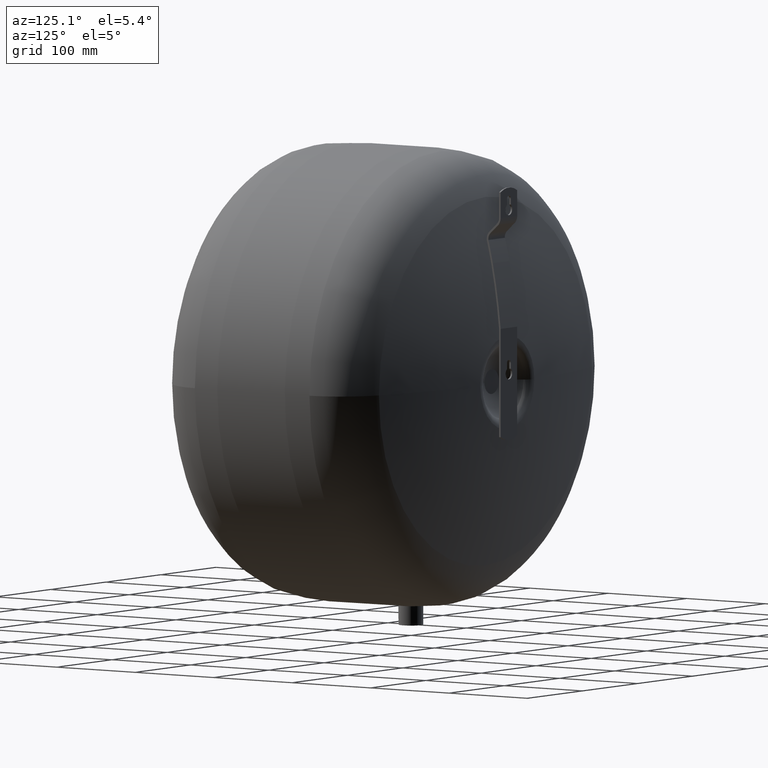
[diagram: clean part render]
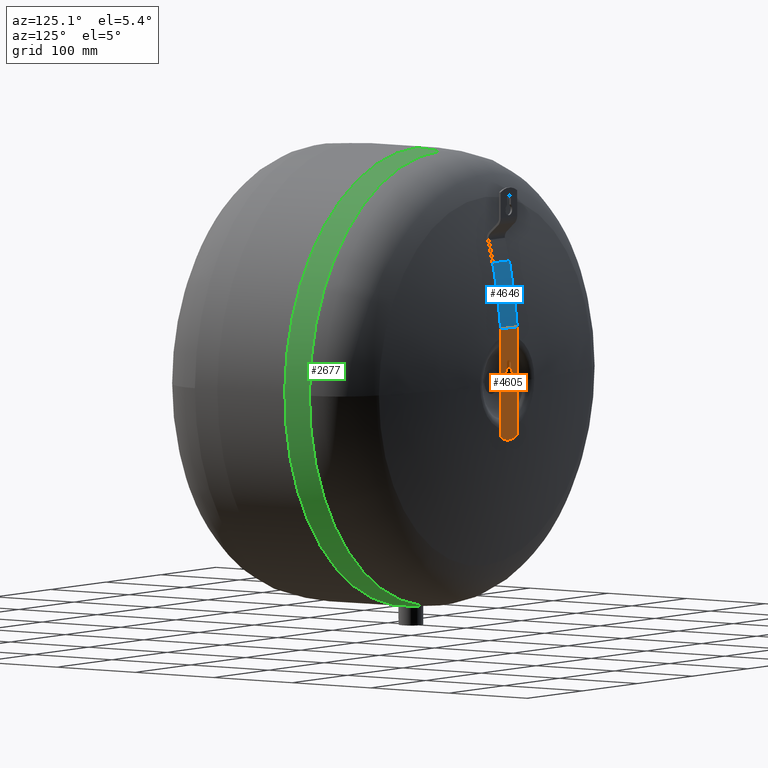
[diagram: same view with three faces highlighted in distinct colors, each labeled with its STEP entity id]
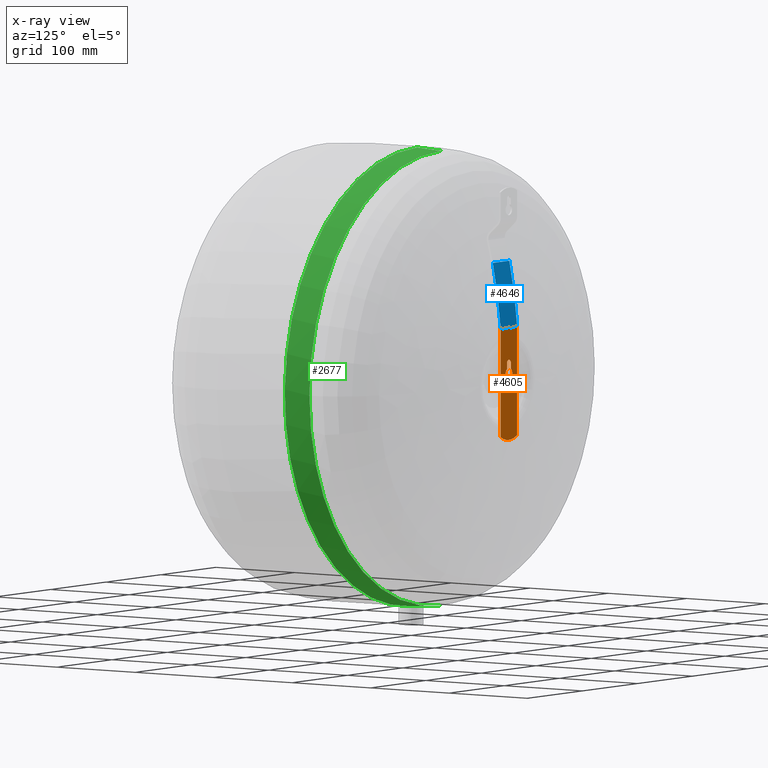
[diagram: x-ray of the same camera — body ghosted, the three highlighted faces saturated]
A machine part, auxiliary view with three faces highlighted in distinct colors.
The next image is the same camera in x-ray (body ghosted, the three faces saturated) — at least one of them is partly hidden behind the body in this view.
Their STEP definitions:

[orange] entity #4605 — the highlighted planar face has unit normal (0, 1, 0).
#4077=CARTESIAN_POINT('',(-3.500000000000005,125.00000000000074,274.3733971724044));
#4078=VERTEX_POINT('',#4077);
#4085=CARTESIAN_POINT('',(-3.499999999999998,125.00000000000074,280.4999999999996));
#4086=VERTEX_POINT('',#4085);
#4087=CARTESIAN_POINT('',(-3.499999999999996,125.00000000000023,280.4999999999996));
#4088=DIRECTION('',(0.0,0.0,-1.0));
#4089=VECTOR('',#4088,6.126602827595207);
#4090=LINE('',#4087,#4089);
#4091=EDGE_CURVE('',#4086,#4078,#4090,.T.);
#4117=CARTESIAN_POINT('',(3.500000000000005,125.00000000000074,280.4999999999996));
#4118=VERTEX_POINT('',#4117);
#4119=CARTESIAN_POINT('',(5.329071E-015,125.00000000000023,280.4999999999996));
#4120=DIRECTION('',(0.0,-1.0,0.0));
#4121=DIRECTION('',(-1.0,0.0,0.0));
#4122=AXIS2_PLACEMENT_3D('',#4119,#4120,#4121);
#4123=CIRCLE('',#4122,3.5);
#4124=EDGE_CURVE('',#4118,#4086,#4123,.T.);
#4149=CARTESIAN_POINT('',(3.500000000000016,125.00000000000074,274.37339717240405));
#4150=VERTEX_POINT('',#4149);
#4151=CARTESIAN_POINT('',(3.500000000000013,125.00000000000023,274.37339717240405));
#4152=DIRECTION('',(0.0,0.0,1.0));
#4153=VECTOR('',#4152,6.126602827595548);
#4154=LINE('',#4151,#4153);
#4155=EDGE_CURVE('',#4150,#4118,#4154,.T.);
#4179=CARTESIAN_POINT('',(3.552714E-015,125.00000000000023,269.4999999999996));
#4180=DIRECTION('',(-6.250595E-017,-1.0,-8.703323E-017));
#4181=DIRECTION('',(0.583333333333335,-1.071531E-016,0.812232862067412));
#4182=AXIS2_PLACEMENT_3D('',#4179,#4180,#4181);
#4183=CIRCLE('',#4182,6.000000000000003);
#4184=EDGE_CURVE('',#4078,#4150,#4183,.T.);
#4206=CARTESIAN_POINT('',(0.0,125.00000000000074,200.0));
#4207=VERTEX_POINT('',#4206);
#4214=CARTESIAN_POINT('',(15.0,125.00000000000074,204.0));
#4215=VERTEX_POINT('',#4214);
#4216=CARTESIAN_POINT('',(-0.033617296123742,125.00000000000023,230.25106486046417));
#4217=DIRECTION('',(4.536625E-017,1.0,-7.921662E-017));
#4218=DIRECTION('',(-0.496961283270637,9.128729E-017,0.867772713865792));
#4219=AXIS2_PLACEMENT_3D('',#4216,#4217,#4218);
#4220=CIRCLE('',#4219,30.251083539513232);
#4221=EDGE_CURVE('',#4215,#4207,#4220,.T.);
#4246=CARTESIAN_POINT('',(-14.999999999999998,125.00000000000075,204.0));
#4247=VERTEX_POINT('',#4246);
#4254=CARTESIAN_POINT('',(-3.730349E-014,125.00000000000023,230.125));
#4255=DIRECTION('',(0.0,1.0,0.0));
#4256=DIRECTION('',(0.0,0.0,1.0));
#4257=AXIS2_PLACEMENT_3D('',#4254,#4255,#4256);
#4258=CIRCLE('',#4257,30.125);
#4259=EDGE_CURVE('',#4207,#4247,#4258,.T.);
#4313=CARTESIAN_POINT('',(15.000000000000007,125.00000000000023,317.55608499470873));
#4314=VERTEX_POINT('',#4313);
#4315=CARTESIAN_POINT('',(15.000000000000007,125.00000000000023,317.55608499470873));
#4316=DIRECTION('',(0.0,0.0,-1.0));
#4317=VECTOR('',#4316,113.55608499470873);
#4318=LINE('',#4315,#4317);
#4319=EDGE_CURVE('',#4314,#4215,#4318,.T.);
#4541=CARTESIAN_POINT('',(-14.999999999999995,125.00000000000023,317.55608499470873));
#4542=VERTEX_POINT('',#4541);
#4550=CARTESIAN_POINT('',(-15.000000000000002,125.00000000000023,204.0));
#4551=DIRECTION('',(0.0,0.0,1.0));
#4552=VECTOR('',#4551,113.55608499470873);
#4553=LINE('',#4550,#4552);
#4554=EDGE_CURVE('',#4247,#4542,#4553,.T.);
#4582=CARTESIAN_POINT('',(15.0,125.00000000000023,200.0));
#4583=DIRECTION('',(0.0,1.0,0.0));
#4584=DIRECTION('',(-1.0,0.0,0.0));
#4585=AXIS2_PLACEMENT_3D('',#4582,#4583,#4584);
#4586=PLANE('',#4585);
#4587=ORIENTED_EDGE('',*,*,#4221,.T.);
#4588=ORIENTED_EDGE('',*,*,#4259,.T.);
#4589=ORIENTED_EDGE('',*,*,#4554,.T.);
#4590=CARTESIAN_POINT('',(15.000000000000007,125.00000000000023,317.55608499470873));
#4591=DIRECTION('',(-1.0,0.0,0.0));
#4592=VECTOR('',#4591,30.0);
#4593=LINE('',#4590,#4592);
#4594=EDGE_CURVE('',#4314,#4542,#4593,.T.);
#4595=ORIENTED_EDGE('',*,*,#4594,.F.);
#4596=ORIENTED_EDGE('',*,*,#4319,.T.);
#4597=EDGE_LOOP('',(#4587,#4588,#4589,#4595,#4596));
#4598=FACE_OUTER_BOUND('',#4597,.T.);
#4599=ORIENTED_EDGE('',*,*,#4155,.T.);
#4600=ORIENTED_EDGE('',*,*,#4124,.T.);
#4601=ORIENTED_EDGE('',*,*,#4091,.T.);
#4602=ORIENTED_EDGE('',*,*,#4184,.T.);
#4603=EDGE_LOOP('',(#4599,#4600,#4601,#4602));
#4604=FACE_BOUND('',#4603,.T.);
#4605=ADVANCED_FACE('',(#4598,#4604),#4586,.T.);

[blue] entity #4646 — the highlighted cylindrical surface (partial cylindrical patch) has radius 640 mm, axis along (-1, 0, 0).
#4313=CARTESIAN_POINT('',(15.000000000000007,125.00000000000023,317.55608499470873));
#4314=VERTEX_POINT('',#4313);
#4321=CARTESIAN_POINT('',(15.000000000000009,114.96817742757121,386.02499999999253));
#4322=VERTEX_POINT('',#4321);
#4323=CARTESIAN_POINT('',(14.999999999999886,-512.32903053728137,259.1462670322536));
#4324=DIRECTION('',(-1.0,1.883693E-016,3.810006E-017));
#4325=DIRECTION('',(1.921838E-016,0.980151887445084,0.198248020262092));
#4326=AXIS2_PLACEMENT_3D('',#4323,#4324,#4325);
#4327=CIRCLE('',#4326,639.99999999999852);
#4328=EDGE_CURVE('',#4322,#4314,#4327,.T.);
#4532=CARTESIAN_POINT('',(-14.999999999999995,114.96817742757121,386.02499999999253));
#4533=VERTEX_POINT('',#4532);
#4541=CARTESIAN_POINT('',(-14.999999999999995,125.00000000000023,317.55608499470873));
#4542=VERTEX_POINT('',#4541);
#4543=CARTESIAN_POINT('',(-15.000000000000115,-512.32903053728137,259.1462670322536));
#4544=DIRECTION('',(1.0,-1.883693E-016,-3.810006E-017));
#4545=DIRECTION('',(1.921838E-016,0.980151887445084,0.198248020262092));
#4546=AXIS2_PLACEMENT_3D('',#4543,#4544,#4545);
#4547=CIRCLE('',#4546,639.99999999999852);
#4548=EDGE_CURVE('',#4542,#4533,#4547,.T.);
#4590=CARTESIAN_POINT('',(15.000000000000007,125.00000000000023,317.55608499470873));
#4591=DIRECTION('',(-1.0,0.0,0.0));
#4592=VECTOR('',#4591,30.0);
#4593=LINE('',#4590,#4592);
#4594=EDGE_CURVE('',#4314,#4542,#4593,.T.);
#4630=CARTESIAN_POINT('',(14.999999999999886,-512.32903053728137,259.1462670322536));
#4631=DIRECTION('',(-1.0,1.836910E-016,6.123032E-017));
#4632=DIRECTION('',(1.921838E-016,0.980151887445084,0.198248020262092));
#4633=AXIS2_PLACEMENT_3D('',#4630,#4631,#4632);
#4634=CYLINDRICAL_SURFACE('',#4633,639.99999999999852);
#4635=ORIENTED_EDGE('',*,*,#4548,.T.);
#4636=CARTESIAN_POINT('',(15.000000000000009,114.96817742757121,386.02499999999253));
#4637=DIRECTION('',(-1.0,0.0,0.0));
#4638=VECTOR('',#4637,30.000000000000004);
#4639=LINE('',#4636,#4638);
#4640=EDGE_CURVE('',#4322,#4533,#4639,.T.);
#4641=ORIENTED_EDGE('',*,*,#4640,.F.);
#4642=ORIENTED_EDGE('',*,*,#4328,.T.);
#4643=ORIENTED_EDGE('',*,*,#4594,.T.);
#4644=EDGE_LOOP('',(#4635,#4641,#4642,#4643));
#4645=FACE_OUTER_BOUND('',#4644,.T.);
#4646=ADVANCED_FACE('',(#4645),#4634,.T.);

[green] entity #2677 — the highlighted conical surface has half-angle 3.814 deg.
#2614=CARTESIAN_POINT('',(2.014477E-014,23.000000000000085,260.00000000000006));
#2615=DIRECTION('',(-1.836910E-016,-1.0,0.0));
#2616=DIRECTION('',(0.0,0.0,1.0));
#2617=AXIS2_PLACEMENT_3D('',#2614,#2615,#2616);
#2618=CONICAL_SURFACE('',#2617,239.0,3.814074834290341);
#2619=CARTESIAN_POINT('',(3.208469E-014,8.000000000000085,500.00000000000006));
#2620=VERTEX_POINT('',#2619);
#2621=CARTESIAN_POINT('',(3.747295E-014,38.000000000000085,498.00000000000006));
#2622=VERTEX_POINT('',#2621);
#2623=CARTESIAN_POINT('',(3.208469E-014,8.000000000000087,500.00000000000006));
#2624=DIRECTION('',(1.792111E-016,0.997785157856609,-0.066519010523774));
#2625=VECTOR('',#2624,30.066592756745816);
#2626=LINE('',#2623,#2625);
#2627=EDGE_CURVE('',#2620,#2622,#2626,.T.);
#2628=ORIENTED_EDGE('',*,*,#2627,.F.);
#2629=CARTESIAN_POINT('',(10.246950765959362,8.000000000000085,20.218849781722867));
#2630=VERTEX_POINT('',#2629);
#2631=CARTESIAN_POINT('',(1.738941E-014,8.000000000000085,260.00000000000006));
#2632=DIRECTION('',(0.0,-1.0,0.0));
#2633=DIRECTION('',(0.0,0.0,1.0));
#2634=AXIS2_PLACEMENT_3D('',#2631,#2632,#2633);
#2635=CIRCLE('',#2634,240.0);
#2636=EDGE_CURVE('',#2630,#2620,#2635,.T.);
#2637=ORIENTED_EDGE('',*,*,#2636,.F.);
#2638=CARTESIAN_POINT('',(4.036945E-015,12.999999999999973,20.333333333333382));
#2639=VERTEX_POINT('',#2638);
#2640=CARTESIAN_POINT('',(10.246950765959362,8.000000000000085,20.218849781722867));
#2641=CARTESIAN_POINT('',(9.909902838528572,8.431714189769068,20.233253388991443));
#2642=CARTESIAN_POINT('',(9.549835330289239,8.836316341382769,20.245580707638936));
#2643=CARTESIAN_POINT('',(8.021743275096508,10.358667627861394,20.28866452677525));
#2644=CARTESIAN_POINT('',(6.562147677485435,11.354690938704081,20.308133104105167));
#2645=CARTESIAN_POINT('',(3.365431185533117,12.67535645863876,20.329992390162516));
#2646=CARTESIAN_POINT('',(1.628317409958309,12.999999999999972,20.3333333333334));
#2647=CARTESIAN_POINT('',(4.107825E-015,12.999999999999972,20.3333333333334));
#2648=B_SPLINE_CURVE_WITH_KNOTS('',3,(#2640,#2641,#2642,#2643,#2644,#2645,#2646,#2647),.UNSPECIFIED.,.F.,.U.,(4,2,2,4),(0.819416624277037,0.978148369643915,1.466643592631407,1.955138815618898),.UNSPECIFIED.);
#2649=EDGE_CURVE('',#2630,#2639,#2648,.T.);
#2650=ORIENTED_EDGE('',*,*,#2649,.T.);
#2651=CARTESIAN_POINT('',(3.747295E-014,38.000000000000092,22.000000000000053));
#2652=VERTEX_POINT('',#2651);
#2653=CARTESIAN_POINT('',(3.298273E-014,12.999999999999973,20.333333333333385));
#2654=DIRECTION('',(1.792111E-016,0.997785157856609,0.066519010523774));
#2655=VECTOR('',#2654,25.055493963954969);
#2656=LINE('',#2653,#2655);
#2657=EDGE_CURVE('',#2639,#2652,#2656,.T.);
#2658=ORIENTED_EDGE('',*,*,#2657,.T.);
#2659=CARTESIAN_POINT('',(238.00000000000003,38.000000000000043,260.00000000000006));
#2660=VERTEX_POINT('',#2659);
#2661=CARTESIAN_POINT('',(2.290014E-014,38.000000000000085,260.00000000000006));
#2662=DIRECTION('',(0.0,-1.0,0.0));
#2663=DIRECTION('',(0.0,0.0,1.0));
#2664=AXIS2_PLACEMENT_3D('',#2661,#2662,#2663);
#2665=CIRCLE('',#2664,238.0);
#2666=EDGE_CURVE('',#2652,#2660,#2665,.T.);
#2667=ORIENTED_EDGE('',*,*,#2666,.T.);
#2668=CARTESIAN_POINT('',(2.290014E-014,38.000000000000085,260.00000000000006));
#2669=DIRECTION('',(0.0,-1.0,0.0));
#2670=DIRECTION('',(0.0,0.0,1.0));
#2671=AXIS2_PLACEMENT_3D('',#2668,#2669,#2670);
#2672=CIRCLE('',#2671,238.0);
#2673=EDGE_CURVE('',#2660,#2622,#2672,.T.);
#2674=ORIENTED_EDGE('',*,*,#2673,.T.);
#2675=EDGE_LOOP('',(#2628,#2637,#2650,#2658,#2667,#2674));
#2676=FACE_OUTER_BOUND('',#2675,.T.);
#2677=ADVANCED_FACE('',(#2676),#2618,.T.);